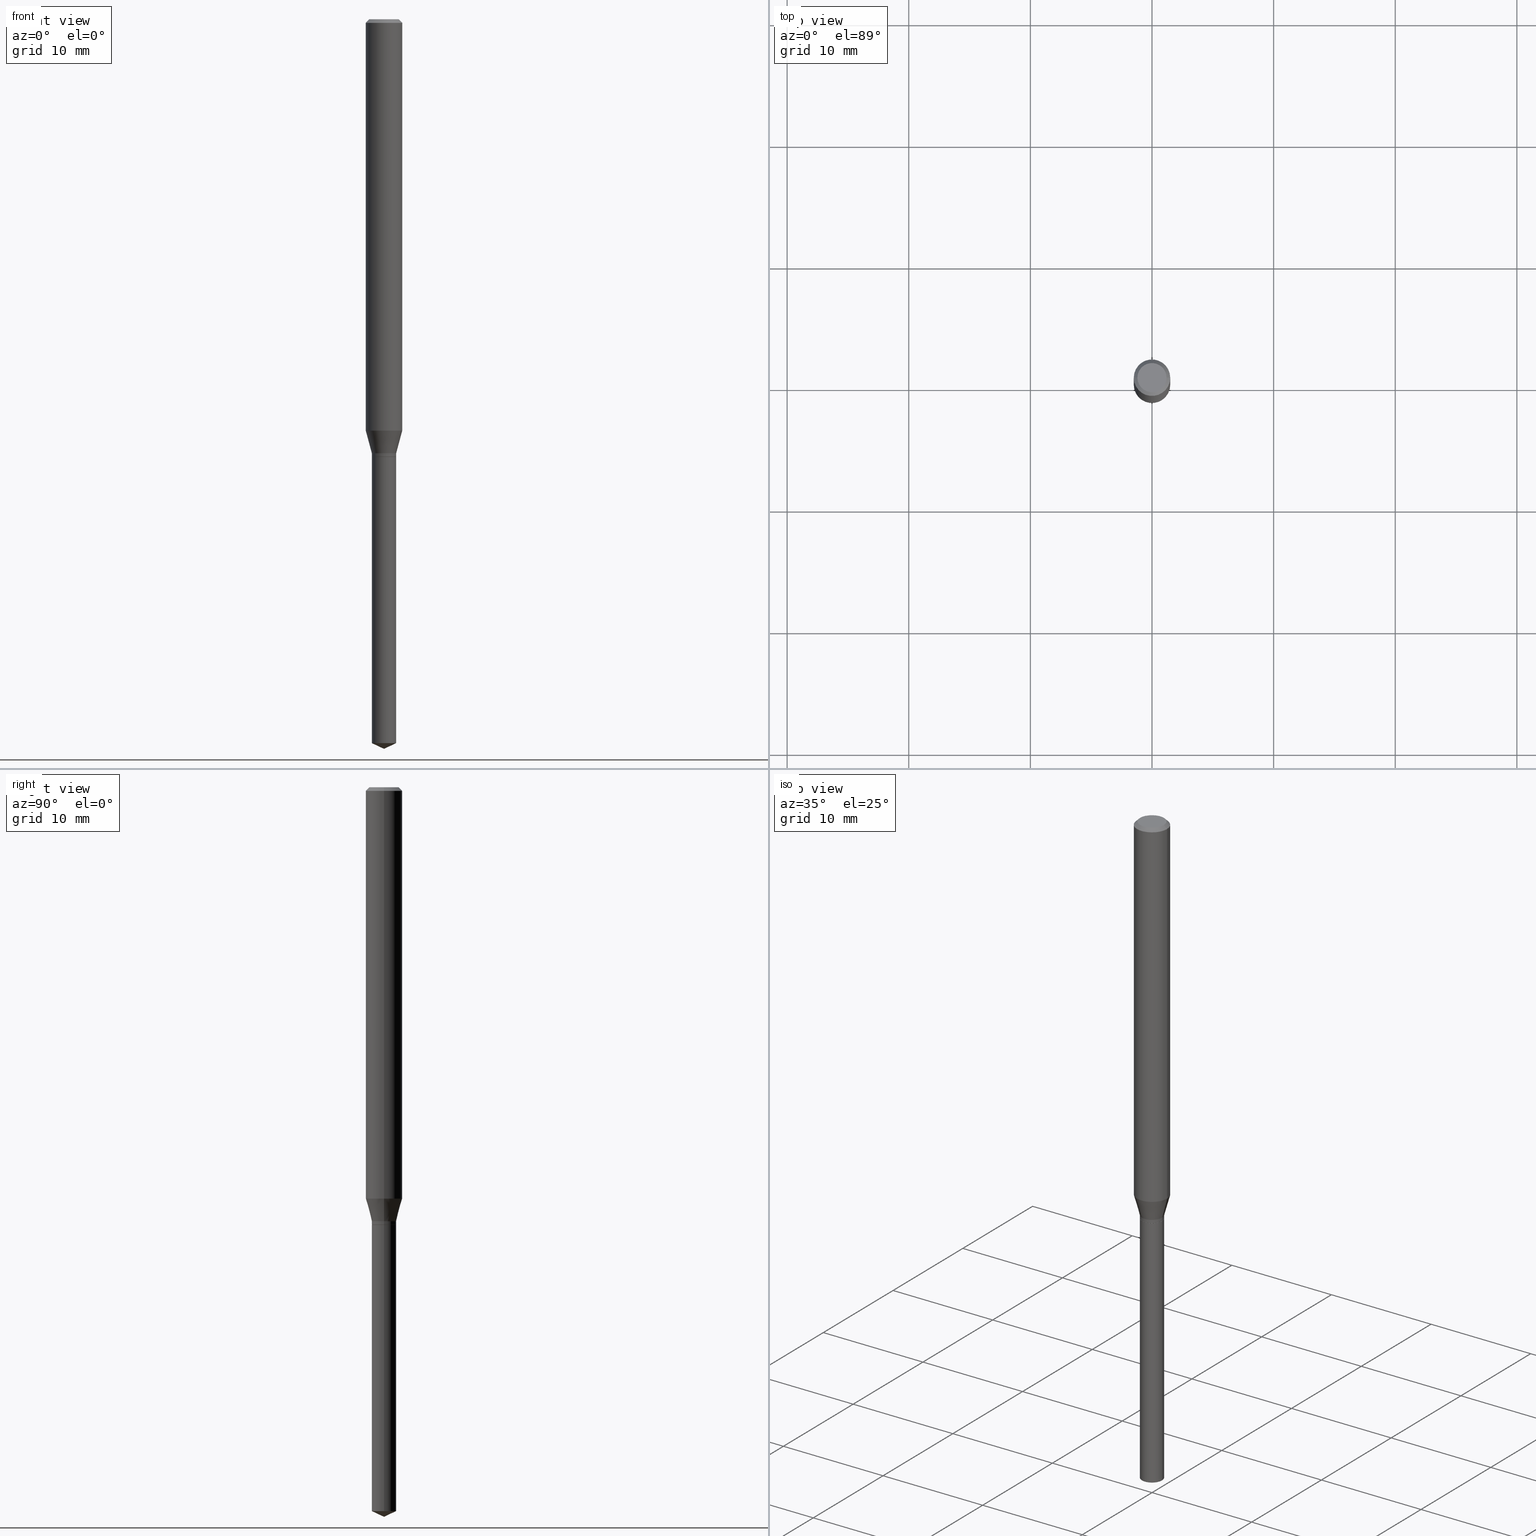
[diagram: canonical four-view strip — front | top / right | iso, engineering-drawing reading convention]
A machine part, canonical four-view strip (front | top / right | iso — engineering-drawing reading convention). The complete STEP part file that produces these views, byte-faithful:
ISO-10303-21;
HEADER;
FILE_DESCRIPTION (( 'STEP AP203' ),
    '1' );
FILE_NAME ('08187.STEP',
    '2024-04-24T13:44:37',
    ( '' ),
    ( '' ),
    'SwSTEP 2.0',
    'SolidWorks 2023',
    '' );
FILE_SCHEMA (( 'CONFIG_CONTROL_DESIGN' ));
ENDSEC;

DATA;
#1 = ORIENTED_EDGE ( 'NONE', *, *, #366, .F. ) ;
#2 = DIRECTION ( 'NONE',  ( -2.445468806185136597E-29, 3.491481338843145583E-15, 1.000000000000000000 ) ) ;
#3 = EDGE_CURVE ( 'NONE', #133, #146, #402, .T. ) ;
#4 = CARTESIAN_POINT ( 'NONE',  ( 3.465473845244957311E-29, -4.947778205274621841E-15, -1.417100000000000026 ) ) ;
#5 = DIRECTION ( 'NONE',  ( 1.000000000000000000, -6.982962677686265922E-15, 0.000000000000000000 ) ) ;
#6 = AXIS2_PLACEMENT_3D ( 'NONE', #8, #2, #35 ) ;
#7 = DIRECTION ( 'NONE',  ( -2.445468806185136597E-29, 3.491481338843145583E-15, 1.000000000000000000 ) ) ;
#8 = CARTESIAN_POINT ( 'NONE',  ( 3.436617313331973250E-29, -4.906578725476272779E-15, -1.405300000000000216 ) ) ;
#9 = CARTESIAN_POINT ( 'NONE',  ( 0.03885000000000000259, -5.219066305302732962E-15, -1.417100000000000026 ) ) ;
#10 = ADVANCED_FACE ( 'NONE', ( #40 ), #375, .T. ) ;
#11 = CARTESIAN_POINT ( 'NONE',  ( 3.465473845244957311E-29, -4.947778205274621841E-15, -1.417100000000000026 ) ) ;
#12 = VERTEX_POINT ( 'NONE', #45 ) ;
#13 = DIRECTION ( 'NONE',  ( 1.000000000000000000, -6.982962677686271444E-15, 0.000000000000000000 ) ) ;
#14 = CONICAL_SURFACE ( 'NONE', #137, 0.03885000000000000259, 0.7853981633978666110 ) ;
#15 = VECTOR ( 'NONE', #287, 39.37007874015748143 ) ;
#16 = CALENDAR_DATE ( 2024, 24, 4 ) ;
#17 = CARTESIAN_POINT ( 'NONE',  ( -0.03935000000000003773, -4.646707028519137557E-15, -1.405300000000000216 ) ) ;
#18 = CARTESIAN_POINT ( 'NONE',  ( 0.05904999999999999832, -4.535783407291118600E-16, -0.01181000000000007218 ) ) ;
#19 = CARTESIAN_POINT ( 'NONE',  ( 0.03885000000000000259, -5.219066305302732962E-15, -1.417100000000000026 ) ) ;
#20 = DIRECTION ( 'NONE',  ( 1.000000000000000000, -6.982962677686269077E-15, 0.000000000000000000 ) ) ;
#21 = CC_DESIGN_PERSON_AND_ORGANIZATION_ASSIGNMENT ( #49, #352, ( #458 ) ) ;
#22 = DIRECTION ( 'NONE',  ( 1.000000000000000000, -6.982962677686263555E-15, 0.000000000000000000 ) ) ;
#23 = AXIS2_PLACEMENT_3D ( 'NONE', #253, #64, #325 ) ;
#24 = PERSON_AND_ORGANIZATION ( #480, #215 ) ;
#25 = CALENDAR_DATE ( 2024, 24, 4 ) ;
#26 = CC_DESIGN_PERSON_AND_ORGANIZATION_ASSIGNMENT ( #282, #286, ( #445 ) ) ;
#27 = CARTESIAN_POINT ( 'NONE',  ( -0.03935000000000003773, -4.626980158954673384E-15, -1.405300000000000216 ) ) ;
#28 = AXIS2_PLACEMENT_3D ( 'NONE', #225, #7, #339 ) ;
#29 = AXIS2_PLACEMENT_3D ( 'NONE', #124, #384, #46 ) ;
#30 = ORIENTED_EDGE ( 'NONE', *, *, #447, .T. ) ;
#31 = EDGE_LOOP ( 'NONE', ( #66, #293, #342, #406 ) ) ;
#32 = EDGE_CURVE ( 'NONE', #41, #462, #111, .T. ) ;
#33 = ORIENTED_EDGE ( 'NONE', *, *, #109, .T. ) ;
#34 = ORIENTED_EDGE ( 'NONE', *, *, #366, .T. ) ;
#35 = DIRECTION ( 'NONE',  ( 1.000000000000000000, -6.982962677686263555E-15, 0.000000000000000000 ) ) ;
#36 = AXIS2_PLACEMENT_3D ( 'NONE', #4, #337, #305 ) ;
#37 = VERTEX_POINT ( 'NONE', #423 ) ;
#38 = FACE_OUTER_BOUND ( 'NONE', #419, .T. ) ;
#39 = EDGE_CURVE ( 'NONE', #349, #328, #200, .T. ) ;
#40 = FACE_OUTER_BOUND ( 'NONE', #415, .T. ) ;
#41 = VERTEX_POINT ( 'NONE', #17 ) ;
#42 = AXIS2_PLACEMENT_3D ( 'NONE', #132, #202, #285 ) ;
#43 = DIRECTION ( 'NONE',  ( -0.9063077870366544886, 7.915267918739014631E-15, 0.4226182617406897823 ) ) ;
#44 = ADVANCED_FACE ( 'NONE', ( #234 ), #344, .T. ) ;
#45 = CARTESIAN_POINT ( 'NONE',  ( 0.04724000000000000421, -3.852183633974369345E-16, -3.380025165621689721E-19 ) ) ;
#46 = DIRECTION ( 'NONE',  ( 1.000000000000000000, -6.982962677686266711E-15, 4.876176775795936353E-29 ) ) ;
#47 = CARTESIAN_POINT ( 'NONE',  ( 4.132873053354867254E-48, -5.900647395337818946E-34, -1.690012582823346072E-19 ) ) ;
#48 = DIRECTION ( 'NONE',  ( -2.445468806185136597E-29, 3.491481338843145583E-15, 1.000000000000000000 ) ) ;
#49 = PERSON_AND_ORGANIZATION ( #480, #215 ) ;
#50 = ORIENTED_EDGE ( 'NONE', *, *, #103, .T. ) ;
#51 = DIRECTION ( 'NONE',  ( -2.445468806185136597E-29, 3.491481338843145583E-15, 1.000000000000000000 ) ) ;
#52 = CARTESIAN_POINT ( 'NONE',  ( -0.03885000000000000259, -4.669083125257711354E-15, -1.417100000000000026 ) ) ;
#53 = CC_DESIGN_APPROVAL ( #181, ( #445 ) ) ;
#54 = APPLICATION_PROTOCOL_DEFINITION ( 'international standard', 'config_control_design', 1994, #376 ) ;
#55 = DIRECTION ( 'NONE',  ( -2.445468806185136877E-29, 3.491481338843145188E-15, 1.000000000000000000 ) ) ;
#56 = EDGE_CURVE ( 'NONE', #146, #37, #301, .T. ) ;
#57 = CARTESIAN_POINT ( 'NONE',  ( 0.000000000000000000, 0.000000000000000000, 0.000000000000000000 ) ) ;
#58 = ADVANCED_BREP_SHAPE_REPRESENTATION ( '08187', ( #322, #150, #311 ), #250 ) ;
#59 = DATE_AND_TIME ( #399, #338 ) ;
#60 = CARTESIAN_POINT ( 'NONE',  ( 5.731324908466029700E-29, -8.182813010799494343E-15, -2.343650793651601560 ) ) ;
#61 = DIRECTION ( 'NONE',  ( -2.445468806185136597E-29, 3.491481338843145583E-15, 1.000000000000000000 ) ) ;
#62 = VECTOR ( 'NONE', #262, 39.37007874015748143 ) ;
#63 = ADVANCED_FACE ( 'NONE', ( #113 ), #385, .F. ) ;
#64 = DIRECTION ( 'NONE',  ( -2.445468806185136597E-29, 3.491481338843145583E-15, 1.000000000000000000 ) ) ;
#65 = ORIENTED_EDGE ( 'NONE', *, *, #212, .F. ) ;
#66 = ORIENTED_EDGE ( 'NONE', *, *, #473, .T. ) ;
#67 = ADVANCED_FACE ( 'NONE', ( #75 ), #196, .T. ) ;
#68 = VERTEX_POINT ( 'NONE', #114 ) ;
#69 = ORIENTED_EDGE ( 'NONE', *, *, #335, .T. ) ;
#70 = PLANE ( 'NONE',  #405 ) ;
#71 = CIRCLE ( 'NONE', #359, 0.03935000000000000303 ) ;
#72 = EDGE_CURVE ( 'NONE', #485, #37, #164, .T. ) ;
#73 = ORIENTED_EDGE ( 'NONE', *, *, #39, .T. ) ;
#74 = CARTESIAN_POINT ( 'NONE',  ( 3.465473845244957311E-29, -4.947778205274621841E-15, -1.417100000000000026 ) ) ;
#75 = FACE_OUTER_BOUND ( 'NONE', #31, .T. ) ;
#76 = DIRECTION ( 'NONE',  ( -1.000000000000000000, 6.982962677686265922E-15, -4.876176775795935793E-29 ) ) ;
#77 = ORIENTED_EDGE ( 'NONE', *, *, #461, .F. ) ;
#78 = CARTESIAN_POINT ( 'NONE',  ( 0.05905000000000015098, -5.062224072313895982E-15, -1.331778599090893245 ) ) ;
#79 = VECTOR ( 'NONE', #354, 39.37007874015748854 ) ;
#80 = ORIENTED_EDGE ( 'NONE', *, *, #176, .F. ) ;
#81 = AXIS2_PLACEMENT_3D ( 'NONE', #463, #356, #22 ) ;
#82 = DIRECTION ( 'NONE',  ( 1.000000000000000000, -6.982962677686261977E-15, 0.000000000000000000 ) ) ;
#83 = EDGE_CURVE ( 'NONE', #383, #328, #166, .T. ) ;
#84 = ORIENTED_EDGE ( 'NONE', *, *, #418, .T. ) ;
#85 = CARTESIAN_POINT ( 'NONE',  ( 3.256823020821720697E-29, -4.649880126196521062E-15, -1.331778599090893245 ) ) ;
#86 = CARTESIAN_POINT ( 'NONE',  ( 0.000000000000000000, 0.000000000000000000, 0.000000000000000000 ) ) ;
#87 = CARTESIAN_POINT ( 'NONE',  ( 3.465473845244957311E-29, -4.947778205274621841E-15, -1.417100000000000026 ) ) ;
#88 = APPLICATION_CONTEXT ( 'configuration controlled 3d designs of mechanical parts and assemblies' ) ;
#89 = DATE_AND_TIME ( #429, #479 ) ;
#90 = EDGE_CURVE ( 'NONE', #41, #383, #403, .T. ) ;
#91 = DIRECTION ( 'NONE',  ( 1.000000000000000000, -6.982962677686256455E-15, 0.000000000000000000 ) ) ;
#92 = AXIS2_PLACEMENT_3D ( 'NONE', #171, #61, #204 ) ;
#93 = VECTOR ( 'NONE', #309, 39.37007874015748143 ) ;
#94 = FACE_OUTER_BOUND ( 'NONE', #148, .T. ) ;
#95 = DATE_TIME_ROLE ( 'creation_date' ) ;
#96 = DIRECTION ( 'NONE',  ( -2.445468806185136597E-29, 3.491481338843145583E-15, 1.000000000000000000 ) ) ;
#97 =( LENGTH_UNIT ( ) NAMED_UNIT ( * ) SI_UNIT ( $, .METRE. ) );
#98 = CC_DESIGN_PERSON_AND_ORGANIZATION_ASSIGNMENT ( #357, #128, ( #445 ) ) ;
#99 = VECTOR ( 'NONE', #43, 39.37007874015748143 ) ;
#100 = CLOSED_SHELL ( 'NONE', ( #67, #191, #125, #371, #233 ) ) ;
#101 = ORIENTED_EDGE ( 'NONE', *, *, #176, .T. ) ;
#102 = ORIENTED_EDGE ( 'NONE', *, *, #461, .T. ) ;
#103 = EDGE_CURVE ( 'NONE', #380, #443, #229, .T. ) ;
#104 = AXIS2_PLACEMENT_3D ( 'NONE', #242, #203, #353 ) ;
#105 = EDGE_LOOP ( 'NONE', ( #219, #448, #412, #372 ) ) ;
#106 = APPROVAL_ROLE ( '' ) ;
#107 = VERTEX_POINT ( 'NONE', #255 ) ;
#108 = DIRECTION ( 'NONE',  ( -2.445468806185136877E-29, 3.491481338843145188E-15, 1.000000000000000000 ) ) ;
#109 = EDGE_CURVE ( 'NONE', #107, #12, #249, .T. ) ;
#110 = ORIENTED_EDGE ( 'NONE', *, *, #360, .F. ) ;
#111 = CIRCLE ( 'NONE', #28, 0.03935000000000003773 ) ;
#112 = AXIS2_PLACEMENT_3D ( 'NONE', #129, #167, #20 ) ;
#113 = FACE_OUTER_BOUND ( 'NONE', #140, .T. ) ;
#114 = CARTESIAN_POINT ( 'NONE',  ( 5.776197320209293305E-29, -8.246878922347511025E-15, -2.362000000000000099 ) ) ;
#115 = DIRECTION ( 'NONE',  ( 1.000000000000000000, -6.982962677686266711E-15, 4.876185090822587894E-29 ) ) ;
#116 = ORIENTED_EDGE ( 'NONE', *, *, #145, .T. ) ;
#117 = DIRECTION ( 'NONE',  ( 1.000000000000000000, -6.982962677686266711E-15, 0.000000000000000000 ) ) ;
#118 = EDGE_CURVE ( 'NONE', #12, #107, #240, .T. ) ;
#119 = DIMENSIONAL_EXPONENTS ( 1.000000000000000000, 0.000000000000000000, 0.000000000000000000, 0.000000000000000000, 0.000000000000000000, 0.000000000000000000, 0.000000000000000000 ) ;
#120 = ORIENTED_EDGE ( 'NONE', *, *, #154, .F. ) ;
#121 = CC_DESIGN_APPROVAL ( #438, ( #197 ) ) ;
#122 = CYLINDRICAL_SURFACE ( 'NONE', #29, 0.05905000000000007465 ) ;
#123 = DIRECTION ( 'NONE',  ( 1.000000000000000000, -6.982962677686265922E-15, 4.876176775795935793E-29 ) ) ;
#124 = CARTESIAN_POINT ( 'NONE',  ( 0.000000000000000000, 0.000000000000000000, 0.000000000000000000 ) ) ;
#125 = ADVANCED_FACE ( 'NONE', ( #269 ), #421, .T. ) ;
#126 = DIRECTION ( 'NONE',  ( 1.000000000000000000, -6.982962677686261977E-15, 0.000000000000000000 ) ) ;
#127 = DIRECTION ( 'NONE',  ( -2.445468806185136597E-29, 3.491481338843145583E-15, 1.000000000000000000 ) ) ;
#128 = PERSON_AND_ORGANIZATION_ROLE ( 'creator' ) ;
#129 = CARTESIAN_POINT ( 'NONE',  ( 5.731324908466029700E-29, -8.182813010799494343E-15, -2.343650793651601560 ) ) ;
#130 = APPROVAL_PERSON_ORGANIZATION ( #24, #345, #106 ) ;
#131 = APPROVAL_STATUS ( 'not_yet_approved' ) ;
#132 = CARTESIAN_POINT ( 'NONE',  ( 3.465473845244957311E-29, -4.947778205274621841E-15, -1.417100000000000026 ) ) ;
#133 = VERTEX_POINT ( 'NONE', #52 ) ;
#134 = EDGE_CURVE ( 'NONE', #462, #216, #248, .T. ) ;
#135 = DIRECTION ( 'NONE',  ( -2.438088387897960049E-29, 3.491481338843145188E-15, 1.000000000000000000 ) ) ;
#136 = PERSON_AND_ORGANIZATION ( #480, #215 ) ;
#137 = AXIS2_PLACEMENT_3D ( 'NONE', #300, #381, #271 ) ;
#138 = ADVANCED_FACE ( 'NONE', ( #470 ), #387, .F. ) ;
#139 = ORIENTED_EDGE ( 'NONE', *, *, #83, .T. ) ;
#140 = EDGE_LOOP ( 'NONE', ( #33, #367 ) ) ;
#141 = CONICAL_SURFACE ( 'NONE', #274, 84.42940631927631046, 1.134464013796324888 ) ;
#142 = CIRCLE ( 'NONE', #434, 0.03885000000000000259 ) ;
#143 = VERTEX_POINT ( 'NONE', #425 ) ;
#144 = CYLINDRICAL_SURFACE ( 'NONE', #283, 0.03935000000000003773 ) ;
#145 = EDGE_CURVE ( 'NONE', #133, #485, #163, .T. ) ;
#146 = VERTEX_POINT ( 'NONE', #19 ) ;
#147 = CARTESIAN_POINT ( 'NONE',  ( 0.05904999999999999832, -4.463468013801466955E-16, -0.01181000000000007218 ) ) ;
#148 = EDGE_LOOP ( 'NONE', ( #410, #261, #259, #263 ) ) ;
#149 = LINE ( 'NONE', #411, #99 ) ;
#150 = MANIFOLD_SOLID_BREP ( 'Body-Move/Copy2[2]', #333 ) ;
#151 = AXIS2_PLACEMENT_3D ( 'NONE', #466, #430, #126 ) ;
#152 = CONICAL_SURFACE ( 'NONE', #81, 0.03935000000000003773, 0.2617993877991509066 ) ;
#153 = ORIENTED_EDGE ( 'NONE', *, *, #207, .F. ) ;
#154 = EDGE_CURVE ( 'NONE', #37, #462, #168, .T. ) ;
#155 = PRODUCT_DEFINITION_SHAPE ( 'NONE', 'NONE',  #197 ) ;
#156 = DIRECTION ( 'NONE',  ( 2.445468806185136597E-29, -3.491481338843145583E-15, -1.000000000000000000 ) ) ;
#157 = DIRECTION ( 'NONE',  ( 0.7071067811868433362, -2.468850131085355312E-15, 0.7071067811862516983 ) ) ;
#158 = DIRECTION ( 'NONE',  ( 1.000000000000000000, -6.982962677686269077E-15, 0.000000000000000000 ) ) ;
#159 = AXIS2_PLACEMENT_3D ( 'NONE', #237, #273, #389 ) ;
#160 = DIRECTION ( 'NONE',  ( -1.000000000000000000, 6.982962677686266711E-15, 0.000000000000000000 ) ) ;
#161 = LOCAL_TIME ( 9, 44, 37.00000000000000000, #347 ) ;
#162 = FACE_OUTER_BOUND ( 'NONE', #489, .T. ) ;
#163 = LINE ( 'NONE', #464, #303 ) ;
#164 = CIRCLE ( 'NONE', #151, 0.03935000000000004466 ) ;
#165 = LENGTH_MEASURE_WITH_UNIT ( LENGTH_MEASURE( 0.02539999999999999897 ), #97 );
#166 = LINE ( 'NONE', #280, #444 ) ;
#167 = DIRECTION ( 'NONE',  ( -2.445468806185136597E-29, 3.491481338843145583E-15, 1.000000000000000000 ) ) ;
#168 = LINE ( 'NONE', #369, #184 ) ;
#169 = PERSON_AND_ORGANIZATION ( #480, #215 ) ;
#170 = DIRECTION ( 'NONE',  ( 2.445468806185136597E-29, -3.491481338843145583E-15, -1.000000000000000000 ) ) ;
#171 = CARTESIAN_POINT ( 'NONE',  ( -9.050210213589845843E-28, 1.292130163076976058E-13, 37.00807874015747956 ) ) ;
#172 = MECHANICAL_CONTEXT ( 'NONE', #376, 'mechanical' ) ;
#173 = CARTESIAN_POINT ( 'NONE',  ( -0.05905000000000015098, -4.230304640730180780E-15, -1.331778599090893245 ) ) ;
#174 = CONICAL_SURFACE ( 'NONE', #209, 0.05904999999999999832, 0.7853981633974452814 ) ;
#175 = DIRECTION ( 'NONE',  ( -2.445468806185136877E-29, 3.491481338843145188E-15, 1.000000000000000000 ) ) ;
#176 = EDGE_CURVE ( 'NONE', #328, #349, #363, .T. ) ;
#177 = COORDINATED_UNIVERSAL_TIME_OFFSET ( 5, 0, .BEHIND. ) ;
#178 = LOCAL_TIME ( 9, 44, 37.00000000000000000, #314 ) ;
#179 = EDGE_LOOP ( 'NONE', ( #254, #188, #73, #256 ) ) ;
#180 = ORIENTED_EDGE ( 'NONE', *, *, #56, .T. ) ;
#181 = APPROVAL ( #131, 'UNSPECIFIED' ) ;
#182 = EDGE_LOOP ( 'NONE', ( #312, #379, #292 ) ) ;
#183 = DIRECTION ( 'NONE',  ( -0.2588190451025221828, 5.211531920934554986E-15, 0.9659258262890678681 ) ) ;
#184 = VECTOR ( 'NONE', #108, 39.37007874015748143 ) ;
#185 = CIRCLE ( 'NONE', #104, 0.05905000000000015098 ) ;
#186 = ORIENTED_EDGE ( 'NONE', *, *, #477, .T. ) ;
#187 = CARTESIAN_POINT ( 'NONE',  ( -0.03935000000000000303, -4.668179638753022446E-15, -1.417100000000000026 ) ) ;
#188 = ORIENTED_EDGE ( 'NONE', *, *, #207, .T. ) ;
#189 = DIRECTION ( 'NONE',  ( -2.445468806185136597E-29, 3.491481338843145583E-15, 1.000000000000000000 ) ) ;
#190 = DIRECTION ( 'NONE',  ( -1.000000000000000000, 6.982962677686265922E-15, -4.876176775795935793E-29 ) ) ;
#191 = ADVANCED_FACE ( 'NONE', ( #302 ), #141, .T. ) ;
#192 = AXIS2_PLACEMENT_3D ( 'NONE', #346, #431, #397 ) ;
#193 = ORIENTED_EDGE ( 'NONE', *, *, #83, .F. ) ;
#194 = CARTESIAN_POINT ( 'NONE',  ( 2.888098660104664204E-31, -4.123439461173780263E-17, -0.01181000000000007218 ) ) ;
#195 = CYLINDRICAL_SURFACE ( 'NONE', #422, 0.05905000000000007465 ) ;
#196 = CYLINDRICAL_SURFACE ( 'NONE', #36, 0.03935000000000000303 ) ;
#197 = PRODUCT_DEFINITION ( 'UNKNOWN', '', #445, #211 ) ;
#198 = CARTESIAN_POINT ( 'NONE',  ( -0.03935000000000003773, 2.795985665215996912E-16, -1.935600958015307043E-30 ) ) ;
#199 = PERSON_AND_ORGANIZATION_ROLE ( 'creator' ) ;
#200 = CIRCLE ( 'NONE', #432, 0.05904999999999999832 ) ;
#201 = ORIENTED_EDGE ( 'NONE', *, *, #317, .T. ) ;
#202 = DIRECTION ( 'NONE',  ( -2.445468806185136597E-29, 3.491481338843145583E-15, 1.000000000000000000 ) ) ;
#203 = DIRECTION ( 'NONE',  ( -2.445468806185136597E-29, 3.491481338843145583E-15, 1.000000000000000000 ) ) ;
#204 = DIRECTION ( 'NONE',  ( 1.000000000000000000, -6.982962677686265922E-15, 0.000000000000000000 ) ) ;
#205 = FACE_OUTER_BOUND ( 'NONE', #231, .T. ) ;
#206 = DATE_TIME_ROLE ( 'classification_date' ) ;
#207 = EDGE_CURVE ( 'NONE', #12, #349, #226, .T. ) ;
#208 = CARTESIAN_POINT ( 'NONE',  ( 0.03935000000000003773, -5.181358306843227696E-15, -1.405300000000000216 ) ) ;
#209 = AXIS2_PLACEMENT_3D ( 'NONE', #424, #170, #467 ) ;
#210 = CC_DESIGN_SECURITY_CLASSIFICATION ( #394, ( #445 ) ) ;
#211 = DESIGN_CONTEXT ( 'detailed design', #88, 'design' ) ;
#212 = EDGE_CURVE ( 'NONE', #68, #416, #413, .T. ) ;
#213 = ORIENTED_EDGE ( 'NONE', *, *, #227, .T. ) ;
#214 = AXIS2_PLACEMENT_3D ( 'NONE', #398, #135, #288 ) ;
#215 = ORGANIZATION ( 'UNSPECIFIED', 'UNSPECIFIED', '' ) ;
#216 = VERTEX_POINT ( 'NONE', #78 ) ;
#217 = ADVANCED_FACE ( 'NONE', ( #268 ), #14, .T. ) ;
#218 = UNCERTAINTY_MEASURE_WITH_UNIT (LENGTH_MEASURE( 1.000000000000000082E-05 ), #393, 'distance_accuracy_value', 'NONE');
#219 = ORIENTED_EDGE ( 'NONE', *, *, #447, .F. ) ;
#220 = EDGE_LOOP ( 'NONE', ( #1, #481 ) ) ;
#221 = CARTESIAN_POINT ( 'NONE',  ( 2.888098660104664204E-31, -4.123439461173780263E-17, -0.01181000000000007218 ) ) ;
#222 = AXIS2_PLACEMENT_3D ( 'NONE', #488, #440, #115 ) ;
#223 = APPROVAL_PERSON_ORGANIZATION ( #136, #181, #439 ) ;
#224 = ORIENTED_EDGE ( 'NONE', *, *, #90, .T. ) ;
#225 = CARTESIAN_POINT ( 'NONE',  ( 3.436617313331973250E-29, -4.906578725476272779E-15, -1.405300000000000216 ) ) ;
#226 = LINE ( 'NONE', #147, #487 ) ;
#227 = EDGE_CURVE ( 'NONE', #68, #143, #149, .T. ) ;
#228 = ORIENTED_EDGE ( 'NONE', *, *, #327, .F. ) ;
#229 = CIRCLE ( 'NONE', #23, 0.03935000000000000303 ) ;
#230 = CC_DESIGN_APPROVAL ( #345, ( #394 ) ) ;
#231 = EDGE_LOOP ( 'NONE', ( #193, #84, #336, #80 ) ) ;
#232 = CARTESIAN_POINT ( 'NONE',  ( 0.05905000000000007465, -4.123439461173745750E-16, 2.879382386107504074E-30 ) ) ;
#233 = ADVANCED_FACE ( 'NONE', ( #38 ), #70, .F. ) ;
#234 = FACE_OUTER_BOUND ( 'NONE', #105, .T. ) ;
#235 = CARTESIAN_POINT ( 'NONE',  ( -0.03935000000000000303, -6.285697041515458697E-15, -1.417100000000000026 ) ) ;
#236 = DATE_AND_TIME ( #25, #178 ) ;
#237 = CARTESIAN_POINT ( 'NONE',  ( 3.465473845244957311E-29, -4.947778205274621841E-15, -1.417100000000000026 ) ) ;
#238 = CARTESIAN_POINT ( 'NONE',  ( 3.465473845244957311E-29, -4.947778205274621841E-15, -1.417100000000000026 ) ) ;
#239 = APPROVAL_DATE_TIME ( #89, #181 ) ;
#240 = CIRCLE ( 'NONE', #222, 0.04724000000000000421 ) ;
#241 = AXIS2_PLACEMENT_3D ( 'NONE', #457, #420, #82 ) ;
#242 = CARTESIAN_POINT ( 'NONE',  ( 3.256823020821720697E-29, -4.649880126196521062E-15, -1.331778599090893245 ) ) ;
#243 = PERSON_AND_ORGANIZATION ( #480, #215 ) ;
#244 = CARTESIAN_POINT ( 'NONE',  ( -0.05904999999999999832, 3.711095515056362547E-16, -0.01181000000000007218 ) ) ;
#245 = EDGE_CURVE ( 'NONE', #462, #41, #414, .T. ) ;
#246 = COORDINATED_UNIVERSAL_TIME_OFFSET ( 5, 0, .BEHIND. ) ;
#247 = DIRECTION ( 'NONE',  ( 1.000000000000000000, -6.982962677686269077E-15, 0.000000000000000000 ) ) ;
#248 = LINE ( 'NONE', #475, #79 ) ;
#249 = CIRCLE ( 'NONE', #295, 0.04724000000000000421 ) ;
#250 =( GEOMETRIC_REPRESENTATION_CONTEXT ( 3 ) GLOBAL_UNCERTAINTY_ASSIGNED_CONTEXT ( ( #218 ) ) GLOBAL_UNIT_ASSIGNED_CONTEXT ( ( #393, #476, #436 ) ) REPRESENTATION_CONTEXT ( 'NONE', 'WORKASPACE' ) );
#251 = AXIS2_PLACEMENT_3D ( 'NONE', #194, #156, #160 ) ;
#252 = CC_DESIGN_PERSON_AND_ORGANIZATION_ASSIGNMENT ( #243, #396, ( #394 ) ) ;
#253 = CARTESIAN_POINT ( 'NONE',  ( 3.465473845244957311E-29, -4.947778205274621841E-15, -1.417100000000000026 ) ) ;
#254 = ORIENTED_EDGE ( 'NONE', *, *, #118, .F. ) ;
#255 = CARTESIAN_POINT ( 'NONE',  ( -0.04724000000000000421, 3.504923541997677355E-16, -3.380025165670481712E-19 ) ) ;
#256 = ORIENTED_EDGE ( 'NONE', *, *, #317, .F. ) ;
#257 = VECTOR ( 'NONE', #55, 39.37007874015748143 ) ;
#258 = SHAPE_DEFINITION_REPRESENTATION ( #155, #58 ) ;
#259 = ORIENTED_EDGE ( 'NONE', *, *, #134, .T. ) ;
#260 = CC_DESIGN_DATE_AND_TIME_ASSIGNMENT ( #465, #95, ( #197 ) ) ;
#261 = ORIENTED_EDGE ( 'NONE', *, *, #32, .T. ) ;
#262 = DIRECTION ( 'NONE',  ( 0.9063077870366544886, -4.853149677051445054E-15, 0.4226182617406897823 ) ) ;
#263 = ORIENTED_EDGE ( 'NONE', *, *, #418, .F. ) ;
#264 = AXIS2_PLACEMENT_3D ( 'NONE', #86, #270, #123 ) ;
#265 = VECTOR ( 'NONE', #175, 39.37007874015748143 ) ;
#266 = DIRECTION ( 'NONE',  ( 2.438088387897960049E-29, -3.491481338843145188E-15, -1.000000000000000000 ) ) ;
#267 = ORIENTED_EDGE ( 'NONE', *, *, #134, .F. ) ;
#268 = FACE_OUTER_BOUND ( 'NONE', #459, .T. ) ;
#269 = FACE_OUTER_BOUND ( 'NONE', #182, .T. ) ;
#270 = DIRECTION ( 'NONE',  ( -2.445468806185136597E-29, 3.491481338843145583E-15, 1.000000000000000000 ) ) ;
#271 = DIRECTION ( 'NONE',  ( 1.000000000000000000, -6.982962677686256455E-15, 0.000000000000000000 ) ) ;
#272 = EDGE_CURVE ( 'NONE', #143, #443, #373, .T. ) ;
#273 = DIRECTION ( 'NONE',  ( -2.445468806185136597E-29, 3.491481338843145583E-15, 1.000000000000000000 ) ) ;
#274 = AXIS2_PLACEMENT_3D ( 'NONE', #417, #189, #5 ) ;
#275 = FACE_OUTER_BOUND ( 'NONE', #334, .T. ) ;
#276 = CC_DESIGN_DATE_AND_TIME_ASSIGNMENT ( #59, #206, ( #394 ) ) ;
#277 = ORIENTED_EDGE ( 'NONE', *, *, #72, .F. ) ;
#278 = DIRECTION ( 'NONE',  ( 1.000000000000000000, -6.982962677686256455E-15, 0.000000000000000000 ) ) ;
#279 = APPROVAL_STATUS ( 'not_yet_approved' ) ;
#280 = CARTESIAN_POINT ( 'NONE',  ( -0.05905000000000007465, 4.195754854663396902E-16, -2.904631170795525395E-30 ) ) ;
#281 = CARTESIAN_POINT ( 'NONE',  ( 0.000000000000000000, 0.000000000000000000, 0.000000000000000000 ) ) ;
#282 = PERSON_AND_ORGANIZATION ( #480, #215 ) ;
#283 = AXIS2_PLACEMENT_3D ( 'NONE', #281, #318, #469 ) ;
#284 = EDGE_CURVE ( 'NONE', #37, #485, #304, .T. ) ;
#285 = DIRECTION ( 'NONE',  ( 1.000000000000000000, -6.982962677686269077E-15, 0.000000000000000000 ) ) ;
#286 = PERSON_AND_ORGANIZATION_ROLE ( 'design_supplier' ) ;
#287 = DIRECTION ( 'NONE',  ( -0.7071067811865453523, 2.468850131082234184E-15, -0.7071067811865496822 ) ) ;
#288 = DIRECTION ( 'NONE',  ( 1.000000000000000000, -6.982962677686265922E-15, 4.876176775795935793E-29 ) ) ;
#289 = DIRECTION ( 'NONE',  ( 1.000000000000000000, 0.000000000000000000, 0.000000000000000000 ) ) ;
#290 = APPLICATION_PROTOCOL_DEFINITION ( 'international standard', 'config_control_design', 1994, #88 ) ;
#291 = ADVANCED_FACE ( 'NONE', ( #486 ), #144, .T. ) ;
#292 = ORIENTED_EDGE ( 'NONE', *, *, #335, .F. ) ;
#293 = ORIENTED_EDGE ( 'NONE', *, *, #272, .T. ) ;
#294 = ADVANCED_FACE ( 'NONE', ( #395 ), #296, .T. ) ;
#295 = AXIS2_PLACEMENT_3D ( 'NONE', #329, #483, #409 ) ;
#296 = CONICAL_SURFACE ( 'NONE', #192, 0.03935000000000003773, 0.2617993877991509066 ) ;
#297 = ORIENTED_EDGE ( 'NONE', *, *, #56, .F. ) ;
#298 = APPROVAL_STATUS ( 'not_yet_approved' ) ;
#299 = ORIENTED_EDGE ( 'NONE', *, *, #109, .F. ) ;
#300 = CARTESIAN_POINT ( 'NONE',  ( 3.465473845244957311E-29, -4.947778205274621841E-15, -1.417100000000000026 ) ) ;
#301 = LINE ( 'NONE', #9, #478 ) ;
#302 = FACE_OUTER_BOUND ( 'NONE', #482, .T. ) ;
#303 = VECTOR ( 'NONE', #428, 39.37007874015748143 ) ;
#304 = CIRCLE ( 'NONE', #241, 0.03935000000000004466 ) ;
#305 = DIRECTION ( 'NONE',  ( 1.000000000000000000, -6.982962677686269077E-15, 0.000000000000000000 ) ) ;
#306 = DIRECTION ( 'NONE',  ( -2.445468806185136597E-29, 3.491481338843145583E-15, 1.000000000000000000 ) ) ;
#307 = DIRECTION ( 'NONE',  ( -2.445468806185136877E-29, 3.491481338843145188E-15, 1.000000000000000000 ) ) ;
#308 = CARTESIAN_POINT ( 'NONE',  ( 2.888098660104664204E-31, -4.123439461173780263E-17, -0.01181000000000007218 ) ) ;
#309 = DIRECTION ( 'NONE',  ( -2.445468806185136877E-29, 3.491481338843145188E-15, 1.000000000000000000 ) ) ;
#310 = PRODUCT_RELATED_PRODUCT_CATEGORY ( 'detail', '', ( #458 ) ) ;
#311 = AXIS2_PLACEMENT_3D ( 'NONE', #355, #362, #289 ) ;
#312 = ORIENTED_EDGE ( 'NONE', *, *, #227, .F. ) ;
#313 = CARTESIAN_POINT ( 'NONE',  ( -0.05904999999999999832, -1.925981774937789113E-15, -0.01181000000000007218 ) ) ;
#314 = COORDINATED_UNIVERSAL_TIME_OFFSET ( 5, 0, .BEHIND. ) ;
#315 = DIRECTION ( 'NONE',  ( -2.445468806185136877E-29, 3.491481338843145188E-15, 1.000000000000000000 ) ) ;
#316 = CARTESIAN_POINT ( 'NONE',  ( 0.03935000000000000303, -5.222557786641576758E-15, -1.417100000000000026 ) ) ;
#317 = EDGE_CURVE ( 'NONE', #107, #328, #460, .T. ) ;
#318 = DIRECTION ( 'NONE',  ( -2.445468806185136597E-29, 3.491481338843145583E-15, 1.000000000000000000 ) ) ;
#319 = APPROVAL_ROLE ( '' ) ;
#320 = VECTOR ( 'NONE', #307, 39.37007874015748143 ) ;
#321 = CARTESIAN_POINT ( 'NONE',  ( 0.03935000000000000997, -8.457592592166449260E-15, -2.343650793651601560 ) ) ;
#322 = MANIFOLD_SOLID_BREP ( 'Body-Move/Copy2[1]', #100 ) ;
#323 = ADVANCED_FACE ( 'NONE', ( #343 ), #195, .T. ) ;
#324 = CARTESIAN_POINT ( 'NONE',  ( -0.03935000000000004466, -4.646707028519137557E-15, -1.416600000000000303 ) ) ;
#325 = DIRECTION ( 'NONE',  ( 1.000000000000000000, -6.982962677686269077E-15, 0.000000000000000000 ) ) ;
#326 = EDGE_LOOP ( 'NONE', ( #368, #30, #365, #120 ) ) ;
#327 = EDGE_CURVE ( 'NONE', #216, #349, #350, .T. ) ;
#328 = VERTEX_POINT ( 'NONE', #313 ) ;
#329 = CARTESIAN_POINT ( 'NONE',  ( 8.265746106709734507E-48, -1.180129479067563789E-33, -3.380025165646692144E-19 ) ) ;
#330 = ORIENTED_EDGE ( 'NONE', *, *, #473, .F. ) ;
#331 = DIRECTION ( 'NONE',  ( 0.7071067811865453523, -7.319954787623248157E-15, -0.7071067811865496822 ) ) ;
#332 = CONICAL_SURFACE ( 'NONE', #401, 0.03885000000000000259, 0.7853981633978666110 ) ;
#333 = CLOSED_SHELL ( 'NONE', ( #454, #390, #323, #294, #291, #44, #382, #351, #10, #63, #138, #217 ) ) ;
#334 = EDGE_LOOP ( 'NONE', ( #377, #69, #186, #110 ) ) ;
#335 = EDGE_CURVE ( 'NONE', #143, #416, #348, .T. ) ;
#336 = ORIENTED_EDGE ( 'NONE', *, *, #327, .T. ) ;
#337 = DIRECTION ( 'NONE',  ( -2.445468806185136597E-29, 3.491481338843145583E-15, 1.000000000000000000 ) ) ;
#338 = LOCAL_TIME ( 9, 44, 37.00000000000000000, #246 ) ;
#339 = DIRECTION ( 'NONE',  ( 1.000000000000000000, -6.982962677686263555E-15, 0.000000000000000000 ) ) ;
#340 = DIRECTION ( 'NONE',  ( 2.438088387897960049E-29, -3.491481338843145188E-15, -1.000000000000000000 ) ) ;
#341 = CC_DESIGN_PERSON_AND_ORGANIZATION_ASSIGNMENT ( #472, #199, ( #197 ) ) ;
#342 = ORIENTED_EDGE ( 'NONE', *, *, #103, .F. ) ;
#343 = FACE_OUTER_BOUND ( 'NONE', #446, .T. ) ;
#344 = CYLINDRICAL_SURFACE ( 'NONE', #264, 0.03935000000000003773 ) ;
#345 = APPROVAL ( #298, 'UNSPECIFIED' ) ;
#346 = CARTESIAN_POINT ( 'NONE',  ( 3.436617313331973250E-29, -4.906578725476272779E-15, -1.405300000000000216 ) ) ;
#347 = COORDINATED_UNIVERSAL_TIME_OFFSET ( 5, 0, .BEHIND. ) ;
#348 = CIRCLE ( 'NONE', #112, 0.03935000000000000303 ) ;
#349 = VERTEX_POINT ( 'NONE', #18 ) ;
#350 = LINE ( 'NONE', #232, #93 ) ;
#351 = ADVANCED_FACE ( 'NONE', ( #205 ), #122, .T. ) ;
#352 = PERSON_AND_ORGANIZATION_ROLE ( 'design_owner' ) ;
#353 = DIRECTION ( 'NONE',  ( 1.000000000000000000, -6.982962677686271444E-15, 0.000000000000000000 ) ) ;
#354 = DIRECTION ( 'NONE',  ( 0.2588190451025221828, 1.565188264969615657E-15, 0.9659258262890678681 ) ) ;
#355 = CARTESIAN_POINT ( 'NONE',  ( 0.000000000000000000, 0.000000000000000000, 0.000000000000000000 ) ) ;
#356 = DIRECTION ( 'NONE',  ( -2.445468806185136597E-29, 3.491481338843145583E-15, 1.000000000000000000 ) ) ;
#357 = PERSON_AND_ORGANIZATION ( #480, #215 ) ;
#358 = AXIS2_PLACEMENT_3D ( 'NONE', #221, #490, #117 ) ;
#359 = AXIS2_PLACEMENT_3D ( 'NONE', #60, #96, #247 ) ;
#360 = EDGE_CURVE ( 'NONE', #443, #380, #441, .T. ) ;
#361 = LINE ( 'NONE', #400, #265 ) ;
#362 = DIRECTION ( 'NONE',  ( 0.000000000000000000, 0.000000000000000000, 1.000000000000000000 ) ) ;
#363 = CIRCLE ( 'NONE', #358, 0.05904999999999999832 ) ;
#364 = AXIS2_PLACEMENT_3D ( 'NONE', #85, #127, #13 ) ;
#365 = ORIENTED_EDGE ( 'NONE', *, *, #245, .F. ) ;
#366 = EDGE_CURVE ( 'NONE', #146, #133, #142, .T. ) ;
#367 = ORIENTED_EDGE ( 'NONE', *, *, #118, .T. ) ;
#368 = ORIENTED_EDGE ( 'NONE', *, *, #284, .T. ) ;
#369 = CARTESIAN_POINT ( 'NONE',  ( 0.03935000000000003773, -2.747795813669548183E-16, 1.918775561275702475E-30 ) ) ;
#370 = CALENDAR_DATE ( 2024, 24, 4 ) ;
#371 = ADVANCED_FACE ( 'NONE', ( #275 ), #391, .T. ) ;
#372 = ORIENTED_EDGE ( 'NONE', *, *, #32, .F. ) ;
#373 = LINE ( 'NONE', #187, #320 ) ;
#374 = APPROVAL_PERSON_ORGANIZATION ( #169, #438, #319 ) ;
#375 = CONICAL_SURFACE ( 'NONE', #251, 0.05904999999999999832, 0.7853981633974452814 ) ;
#376 = APPLICATION_CONTEXT ( 'configuration controlled 3d designs of mechanical parts and assemblies' ) ;
#377 = ORIENTED_EDGE ( 'NONE', *, *, #272, .F. ) ;
#378 = CARTESIAN_POINT ( 'NONE',  ( 5.776197320209293305E-29, -8.246878922347511025E-15, -2.362000000000000099 ) ) ;
#379 = ORIENTED_EDGE ( 'NONE', *, *, #212, .T. ) ;
#380 = VERTEX_POINT ( 'NONE', #316 ) ;
#381 = DIRECTION ( 'NONE',  ( -2.445468806185136597E-29, 3.491481338843145583E-15, 1.000000000000000000 ) ) ;
#382 = ADVANCED_FACE ( 'NONE', ( #94 ), #152, .T. ) ;
#383 = VERTEX_POINT ( 'NONE', #173 ) ;
#384 = DIRECTION ( 'NONE',  ( -2.445468806185136597E-29, 3.491481338843145583E-15, 1.000000000000000000 ) ) ;
#385 = PLANE ( 'NONE',  #392 ) ;
#386 = LINE ( 'NONE', #198, #257 ) ;
#387 = PLANE ( 'NONE',  #214 ) ;
#388 = APPROVAL_DATE_TIME ( #236, #438 ) ;
#389 = DIRECTION ( 'NONE',  ( 1.000000000000000000, -6.982962677686256455E-15, 0.000000000000000000 ) ) ;
#390 = ADVANCED_FACE ( 'NONE', ( #427 ), #174, .T. ) ;
#391 = CYLINDRICAL_SURFACE ( 'NONE', #42, 0.03935000000000000303 ) ;
#392 = AXIS2_PLACEMENT_3D ( 'NONE', #47, #266, #190 ) ;
#393 =( CONVERSION_BASED_UNIT ( 'INCH', #165 ) LENGTH_UNIT ( ) NAMED_UNIT ( #119 ) );
#394 = SECURITY_CLASSIFICATION ( '', '', #433 ) ;
#395 = FACE_OUTER_BOUND ( 'NONE', #450, .T. ) ;
#396 = PERSON_AND_ORGANIZATION_ROLE ( 'classification_officer' ) ;
#397 = DIRECTION ( 'NONE',  ( 1.000000000000000000, -6.982962677686263555E-15, 0.000000000000000000 ) ) ;
#398 = CARTESIAN_POINT ( 'NONE',  ( 3.465473845244957311E-29, -4.947778205274621841E-15, -1.417100000000000026 ) ) ;
#399 = CALENDAR_DATE ( 2024, 24, 4 ) ;
#400 = CARTESIAN_POINT ( 'NONE',  ( 0.03935000000000000303, -5.222557786641576758E-15, -1.417100000000000026 ) ) ;
#401 = AXIS2_PLACEMENT_3D ( 'NONE', #238, #51, #91 ) ;
#402 = CIRCLE ( 'NONE', #159, 0.03885000000000000259 ) ;
#403 = LINE ( 'NONE', #27, #452 ) ;
#404 = ORIENTED_EDGE ( 'NONE', *, *, #39, .F. ) ;
#405 = AXIS2_PLACEMENT_3D ( 'NONE', #74, #340, #76 ) ;
#406 = ORIENTED_EDGE ( 'NONE', *, *, #477, .F. ) ;
#407 = ORIENTED_EDGE ( 'NONE', *, *, #3, .T. ) ;
#408 = DATE_AND_TIME ( #370, #471 ) ;
#409 = DIRECTION ( 'NONE',  ( 1.000000000000000000, -6.982962677686266711E-15, 4.876185090822587894E-29 ) ) ;
#410 = ORIENTED_EDGE ( 'NONE', *, *, #90, .F. ) ;
#411 = CARTESIAN_POINT ( 'NONE',  ( 5.776197320209293305E-29, -8.246878922347511025E-15, -2.362000000000000099 ) ) ;
#412 = ORIENTED_EDGE ( 'NONE', *, *, #154, .T. ) ;
#413 = LINE ( 'NONE', #378, #62 ) ;
#414 = CIRCLE ( 'NONE', #6, 0.03935000000000003773 ) ;
#415 = EDGE_LOOP ( 'NONE', ( #153, #299, #201, #101 ) ) ;
#416 = VERTEX_POINT ( 'NONE', #321 ) ;
#417 = CARTESIAN_POINT ( 'NONE',  ( -9.050210213589845843E-28, 1.292130163076976058E-13, 37.00807874015747956 ) ) ;
#418 = EDGE_CURVE ( 'NONE', #383, #216, #484, .T. ) ;
#419 = EDGE_LOOP ( 'NONE', ( #50, #456 ) ) ;
#420 = DIRECTION ( 'NONE',  ( -2.445468806185136597E-29, 3.491481338843145583E-15, 1.000000000000000000 ) ) ;
#421 = CONICAL_SURFACE ( 'NONE', #92, 84.42940631927631046, 1.134464013796324888 ) ;
#422 = AXIS2_PLACEMENT_3D ( 'NONE', #57, #474, #437 ) ;
#423 = CARTESIAN_POINT ( 'NONE',  ( 0.03935000000000004466, -5.220812045972156043E-15, -1.416600000000000303 ) ) ;
#424 = CARTESIAN_POINT ( 'NONE',  ( 2.888098660104664204E-31, -4.123439461173780263E-17, -0.01181000000000007218 ) ) ;
#425 = CARTESIAN_POINT ( 'NONE',  ( -0.03935000000000000997, -7.903214444277894948E-15, -2.343650793651601560 ) ) ;
#426 = ORIENTED_EDGE ( 'NONE', *, *, #145, .F. ) ;
#427 = FACE_OUTER_BOUND ( 'NONE', #179, .T. ) ;
#428 = DIRECTION ( 'NONE',  ( -0.7071067811868433362, 7.493145998871423856E-15, 0.7071067811862516983 ) ) ;
#429 = CALENDAR_DATE ( 2024, 24, 4 ) ;
#430 = DIRECTION ( 'NONE',  ( -2.445468806185136597E-29, 3.491481338843145583E-15, 1.000000000000000000 ) ) ;
#431 = DIRECTION ( 'NONE',  ( -2.445468806185136597E-29, 3.491481338843145583E-15, 1.000000000000000000 ) ) ;
#432 = AXIS2_PLACEMENT_3D ( 'NONE', #308, #306, #455 ) ;
#433 = SECURITY_CLASSIFICATION_LEVEL ( 'unclassified' ) ;
#434 = AXIS2_PLACEMENT_3D ( 'NONE', #11, #48, #278 ) ;
#435 = DIRECTION ( 'NONE',  ( -2.445468806185136597E-29, 3.491481338843145583E-15, 1.000000000000000000 ) ) ;
#436 =( NAMED_UNIT ( * ) SI_UNIT ( $, .STERADIAN. ) SOLID_ANGLE_UNIT ( ) );
#437 = DIRECTION ( 'NONE',  ( 1.000000000000000000, -6.982962677686266711E-15, 4.876176775795936353E-29 ) ) ;
#438 = APPROVAL ( #279, 'UNSPECIFIED' ) ;
#439 = APPROVAL_ROLE ( '' ) ;
#440 = DIRECTION ( 'NONE',  ( -2.445468806185136597E-29, 3.491481338843145583E-15, 1.000000000000000000 ) ) ;
#441 = CIRCLE ( 'NONE', #453, 0.03935000000000000303 ) ;
#442 = ORIENTED_EDGE ( 'NONE', *, *, #245, .T. ) ;
#443 = VERTEX_POINT ( 'NONE', #235 ) ;
#444 = VECTOR ( 'NONE', #315, 39.37007874015748143 ) ;
#445 = PRODUCT_DEFINITION_FORMATION_WITH_SPECIFIED_SOURCE ( 'ANY', '', #458, .NOT_KNOWN. ) ;
#446 = EDGE_LOOP ( 'NONE', ( #102, #139, #404, #228 ) ) ;
#447 = EDGE_CURVE ( 'NONE', #485, #41, #386, .T. ) ;
#448 = ORIENTED_EDGE ( 'NONE', *, *, #72, .T. ) ;
#449 = APPROVAL_DATE_TIME ( #408, #345 ) ;
#450 = EDGE_LOOP ( 'NONE', ( #442, #224, #77, #267 ) ) ;
#451 = ORIENTED_EDGE ( 'NONE', *, *, #284, .F. ) ;
#452 = VECTOR ( 'NONE', #183, 39.37007874015748854 ) ;
#453 = AXIS2_PLACEMENT_3D ( 'NONE', #87, #435, #158 ) ;
#454 = ADVANCED_FACE ( 'NONE', ( #162 ), #332, .T. ) ;
#455 = DIRECTION ( 'NONE',  ( 1.000000000000000000, -6.982962677686266711E-15, 0.000000000000000000 ) ) ;
#456 = ORIENTED_EDGE ( 'NONE', *, *, #360, .T. ) ;
#457 = CARTESIAN_POINT ( 'NONE',  ( 3.464251110841865630E-29, -4.946032464605201126E-15, -1.416600000000000303 ) ) ;
#458 = PRODUCT ( '08187', '08187', '', ( #172 ) ) ;
#459 = EDGE_LOOP ( 'NONE', ( #426, #407, #180, #277 ) ) ;
#460 = LINE ( 'NONE', #244, #15 ) ;
#461 = EDGE_CURVE ( 'NONE', #216, #383, #185, .T. ) ;
#462 = VERTEX_POINT ( 'NONE', #208 ) ;
#463 = CARTESIAN_POINT ( 'NONE',  ( 3.436617313331973250E-29, -4.906578725476272779E-15, -1.405300000000000216 ) ) ;
#464 = CARTESIAN_POINT ( 'NONE',  ( -0.03885000000000000259, -4.671732352431822555E-15, -1.417100000000000026 ) ) ;
#465 = DATE_AND_TIME ( #16, #161 ) ;
#466 = CARTESIAN_POINT ( 'NONE',  ( 3.464251110841865630E-29, -4.946032464605201126E-15, -1.416600000000000303 ) ) ;
#467 = DIRECTION ( 'NONE',  ( -1.000000000000000000, 6.982962677686266711E-15, 0.000000000000000000 ) ) ;
#468 = COORDINATED_UNIVERSAL_TIME_OFFSET ( 5, 0, .BEHIND. ) ;
#469 = DIRECTION ( 'NONE',  ( 1.000000000000000000, -6.982962677686265922E-15, 4.876176775795935793E-29 ) ) ;
#470 = FACE_OUTER_BOUND ( 'NONE', #220, .T. ) ;
#471 = LOCAL_TIME ( 9, 44, 37.00000000000000000, #177 ) ;
#472 = PERSON_AND_ORGANIZATION ( #480, #215 ) ;
#473 = EDGE_CURVE ( 'NONE', #416, #143, #71, .T. ) ;
#474 = DIRECTION ( 'NONE',  ( -2.445468806185136597E-29, 3.491481338843145583E-15, 1.000000000000000000 ) ) ;
#475 = CARTESIAN_POINT ( 'NONE',  ( 0.03935000000000003773, -5.181358306843227696E-15, -1.405300000000000216 ) ) ;
#476 =( NAMED_UNIT ( * ) PLANE_ANGLE_UNIT ( ) SI_UNIT ( $, .RADIAN. ) );
#477 = EDGE_CURVE ( 'NONE', #416, #380, #361, .T. ) ;
#478 = VECTOR ( 'NONE', #157, 39.37007874015748143 ) ;
#479 = LOCAL_TIME ( 9, 44, 37.00000000000000000, #468 ) ;
#480 = PERSON ( 'UNSPECIFIED', 'UNSPECIFIED', 'UNSPECIFIED', ('UNSPECIFIED'), ('UNSPECIFIED'), ('UNSPECIFIED') ) ;
#481 = ORIENTED_EDGE ( 'NONE', *, *, #3, .F. ) ;
#482 = EDGE_LOOP ( 'NONE', ( #65, #213, #330 ) ) ;
#483 = DIRECTION ( 'NONE',  ( -2.445468806185136597E-29, 3.491481338843145583E-15, 1.000000000000000000 ) ) ;
#484 = CIRCLE ( 'NONE', #364, 0.05905000000000015098 ) ;
#485 = VERTEX_POINT ( 'NONE', #324 ) ;
#486 = FACE_OUTER_BOUND ( 'NONE', #326, .T. ) ;
#487 = VECTOR ( 'NONE', #331, 39.37007874015748143 ) ;
#488 = CARTESIAN_POINT ( 'NONE',  ( 8.265746106709734507E-48, -1.180129479067563789E-33, -3.380025165646692144E-19 ) ) ;
#489 = EDGE_LOOP ( 'NONE', ( #34, #116, #451, #297 ) ) ;
#490 = DIRECTION ( 'NONE',  ( -2.445468806185136597E-29, 3.491481338843145583E-15, 1.000000000000000000 ) ) ;
ENDSEC;
END-ISO-10303-21;
